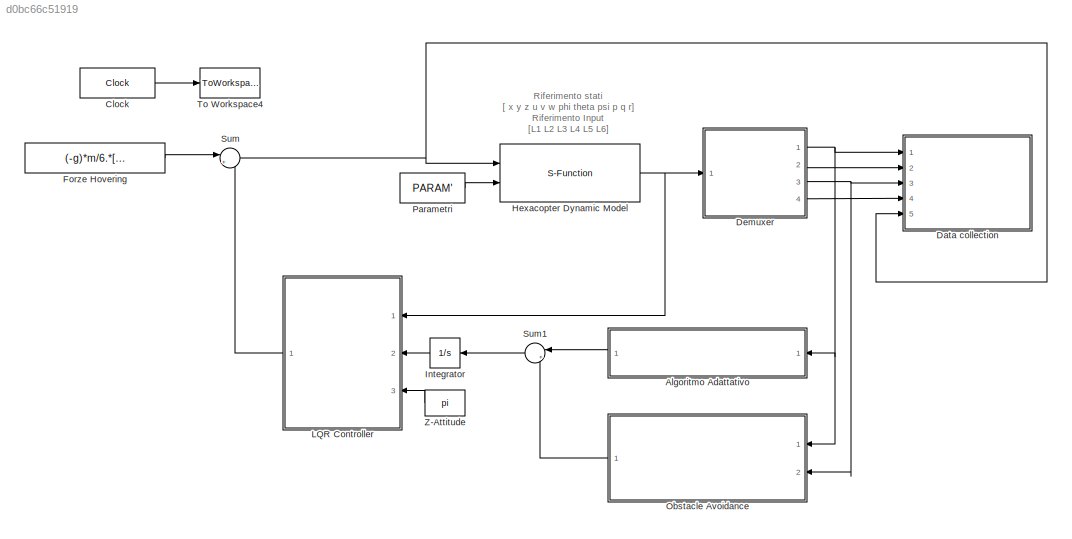
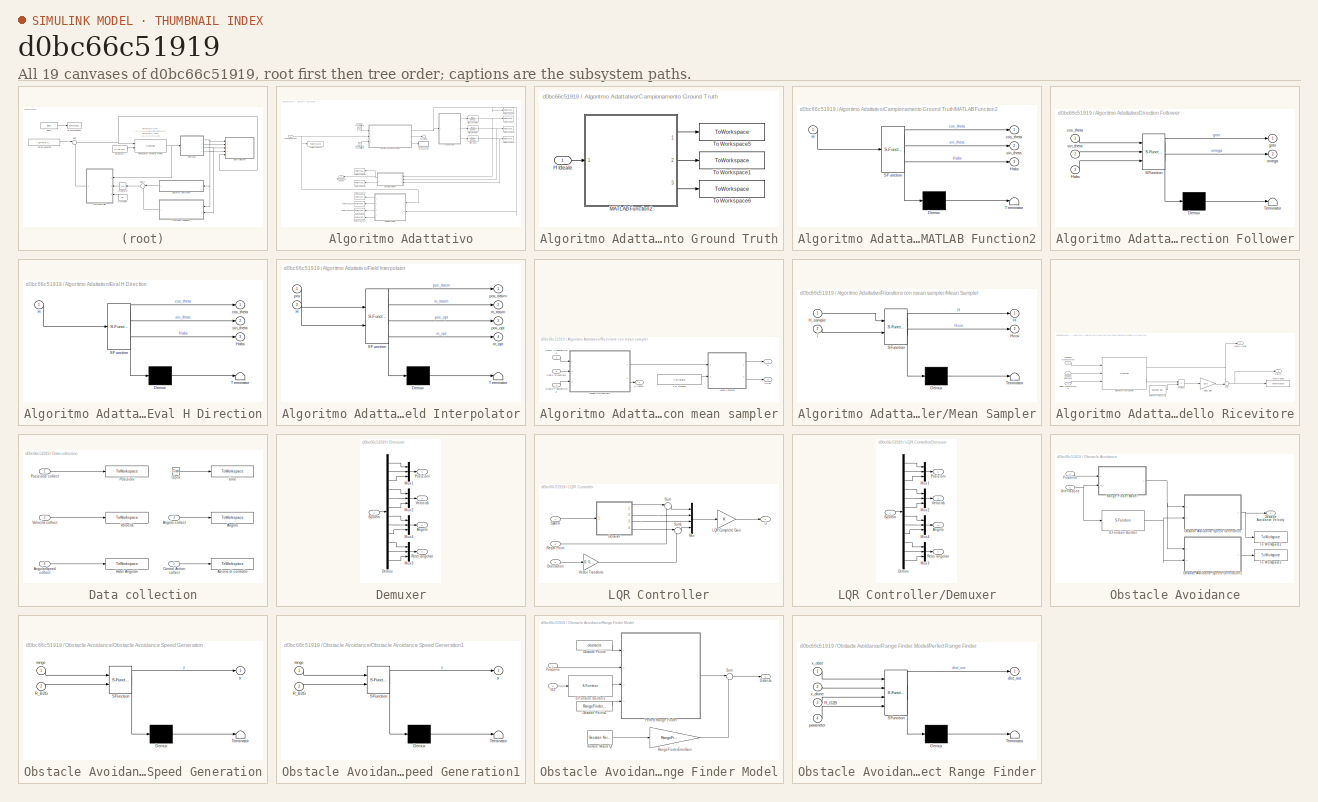
[diagram: thumbnail index - all 19 canvases of the model, root first then tree order]
MODEL slx_d0bc66c51919
KIND model
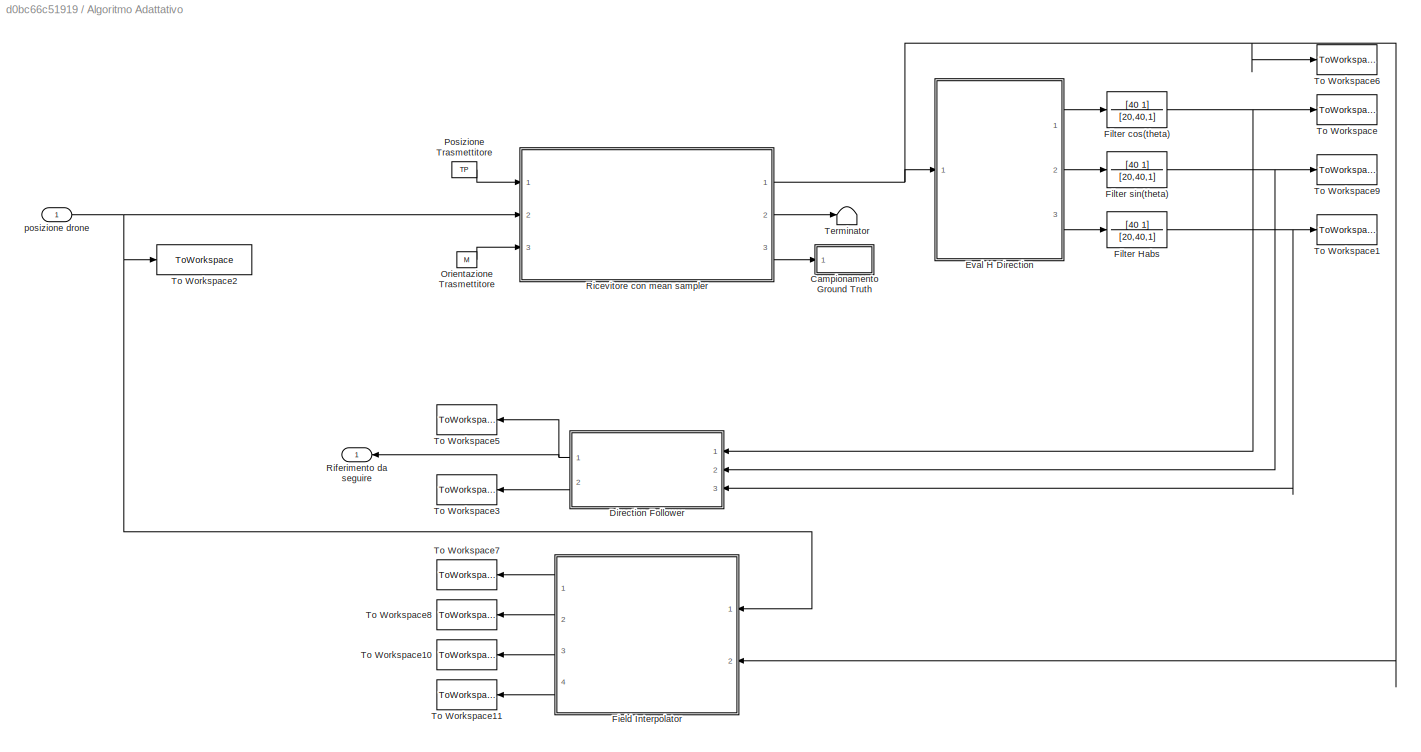
BLOCK [SubSystem] Algoritmo Adattativo
  Ports = [1, 1]
  RequestExecContextInheritance = off
BLOCK [SubSystem] Algoritmo Adattativo/Campionamento Ground Truth
  Ports = [1]
  RequestExecContextInheritance = off
BLOCK [Inport] Algoritmo Adattativo/Campionamento Ground Truth/H Ideale
  IconDisplay = Port number
BLOCK [SubSystem] Algoritmo Adattativo/Campionamento Ground Truth/MATLAB Function2
  ErrorFcn = Stateflow.Translate.translate
  PermitHierarchicalResolution = ExplicitOnly
  Ports = [1, 3]
  RequestExecContextInheritance = off
  SFBlockType = MATLAB Function
  TreatAsAtomicUnit = on
BLOCK [Demux] Algoritmo Adattativo/Campionamento Ground Truth/MATLAB Function2/ Demux 
  Outputs = 1
  Ports = [1, 1]
BLOCK [S-Function] Algoritmo Adattativo/Campionamento Ground Truth/MATLAB Function2/ SFunction 
  EnableBusSupport = on
  FunctionName = sf_sfun
  PortCounts = [1 4]
  Ports = [1, 4]
  Tag = Stateflow S-Function hexacopter 5
BLOCK [Terminator] Algoritmo Adattativo/Campionamento Ground Truth/MATLAB Function2/ Terminator 
BLOCK [Inport] Algoritmo Adattativo/Campionamento Ground Truth/MATLAB Function2/H
  IconDisplay = Port number
BLOCK [Outport] Algoritmo Adattativo/Campionamento Ground Truth/MATLAB Function2/Habs
  IconDisplay = Port number
  Port = 3
BLOCK [Outport] Algoritmo Adattativo/Campionamento Ground Truth/MATLAB Function2/cos_theta
  IconDisplay = Port number
BLOCK [Outport] Algoritmo Adattativo/Campionamento Ground Truth/MATLAB Function2/sin_theta
  IconDisplay = Port number
  Port = 2
BLOCK [ToWorkspace] Algoritmo Adattativo/Campionamento Ground Truth/To Workspace1
  MaxDataPoints = inf
  Ports = [1]
  SampleTime = -1
  VariableName = sin_theta_real
BLOCK [ToWorkspace] Algoritmo Adattativo/Campionamento Ground Truth/To Workspace5
  MaxDataPoints = inf
  Ports = [1]
  SampleTime = -1
  VariableName = cos_theta_real
BLOCK [ToWorkspace] Algoritmo Adattativo/Campionamento Ground Truth/To Workspace6
  MaxDataPoints = inf
  Ports = [1]
  SampleTime = -1
  VariableName = Habs_real
BLOCK [SubSystem] Algoritmo Adattativo/Direction Follower
  ErrorFcn = Stateflow.Translate.translate
  PermitHierarchicalResolution = ExplicitOnly
  Ports = [3, 2]
  RequestExecContextInheritance = off
  SFBlockType = MATLAB Function
  TreatAsAtomicUnit = on
BLOCK [Demux] Algoritmo Adattativo/Direction Follower/ Demux 
  Outputs = 1
  Ports = [1, 1]
BLOCK [S-Function] Algoritmo Adattativo/Direction Follower/ SFunction 
  EnableBusSupport = on
  FunctionName = sf_sfun
  PortCounts = [3 3]
  Ports = [3, 3]
  Tag = Stateflow S-Function hexacopter 4
BLOCK [Terminator] Algoritmo Adattativo/Direction Follower/ Terminator 
BLOCK [Inport] Algoritmo Adattativo/Direction Follower/Habs
  IconDisplay = Port number
  Port = 3
BLOCK [Inport] Algoritmo Adattativo/Direction Follower/cos_theta
  IconDisplay = Port number
BLOCK [Outport] Algoritmo Adattativo/Direction Follower/goto
  IconDisplay = Port number
BLOCK [Outport] Algoritmo Adattativo/Direction Follower/omega
  IconDisplay = Port number
  Port = 2
BLOCK [Inport] Algoritmo Adattativo/Direction Follower/sin_theta
  IconDisplay = Port number
  Port = 2
BLOCK [SubSystem] Algoritmo Adattativo/Eval H Direction
  ErrorFcn = Stateflow.Translate.translate
  PermitHierarchicalResolution = ExplicitOnly
  Ports = [1, 3]
  RequestExecContextInheritance = off
  SFBlockType = MATLAB Function
  TreatAsAtomicUnit = on
BLOCK [Demux] Algoritmo Adattativo/Eval H Direction/ Demux 
  Outputs = 1
  Ports = [1, 1]
BLOCK [S-Function] Algoritmo Adattativo/Eval H Direction/ SFunction 
  EnableBusSupport = on
  FunctionName = sf_sfun
  PortCounts = [1 4]
  Ports = [1, 4]
  SFunctionModules = sf_sfun_wrapper
  Tag = Stateflow S-Function hexacopter 2
BLOCK [Terminator] Algoritmo Adattativo/Eval H Direction/ Terminator 
BLOCK [Inport] Algoritmo Adattativo/Eval H Direction/H
  IconDisplay = Port number
BLOCK [Outport] Algoritmo Adattativo/Eval H Direction/Habs
  IconDisplay = Port number
  Port = 3
BLOCK [Outport] Algoritmo Adattativo/Eval H Direction/cos_theta
  IconDisplay = Port number
BLOCK [Outport] Algoritmo Adattativo/Eval H Direction/sin_theta
  IconDisplay = Port number
  Port = 2
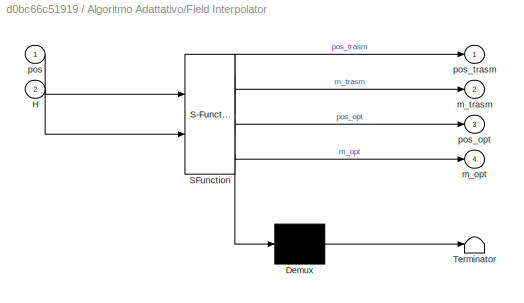
BLOCK [SubSystem] Algoritmo Adattativo/Field Interpolator
  ErrorFcn = Stateflow.Translate.translate
  PermitHierarchicalResolution = ExplicitOnly
  Ports = [2, 4]
  RequestExecContextInheritance = off
  SFBlockType = MATLAB Function
  TreatAsAtomicUnit = on
BLOCK [Demux] Algoritmo Adattativo/Field Interpolator/ Demux 
  Outputs = 1
  Ports = [1, 1]
BLOCK [S-Function] Algoritmo Adattativo/Field Interpolator/ SFunction 
  EnableBusSupport = on
  FunctionName = sf_sfun
  PortCounts = [2 5]
  Ports = [2, 5]
  SFunctionModules = sf_sfun_wrapper
  Tag = Stateflow S-Function hexacopter 6
BLOCK [Terminator] Algoritmo Adattativo/Field Interpolator/ Terminator 
BLOCK [Inport] Algoritmo Adattativo/Field Interpolator/H
  IconDisplay = Port number
  Port = 2
BLOCK [Outport] Algoritmo Adattativo/Field Interpolator/m_opt
  IconDisplay = Port number
  Port = 4
BLOCK [Outport] Algoritmo Adattativo/Field Interpolator/m_trasm
  IconDisplay = Port number
  Port = 2
BLOCK [Inport] Algoritmo Adattativo/Field Interpolator/pos
  IconDisplay = Port number
BLOCK [Outport] Algoritmo Adattativo/Field Interpolator/pos_opt
  IconDisplay = Port number
  Port = 3
BLOCK [Outport] Algoritmo Adattativo/Field Interpolator/pos_trasm
  IconDisplay = Port number
BLOCK [TransferFcn] Algoritmo Adattativo/Filter Habs
  Denominator = [20,40,1]
  Numerator = [40 1]
BLOCK [TransferFcn] Algoritmo Adattativo/Filter cos(theta)
  Denominator = [20,40,1]
  Numerator = [40 1]
BLOCK [TransferFcn] Algoritmo Adattativo/Filter sin(theta)
  Denominator = [20,40,1]
  Numerator = [40 1]
BLOCK [Constant] Algoritmo Adattativo/Orientazione Trasmettitore
  Value = M
BLOCK [Constant] Algoritmo Adattativo/Posizione Trasmettitore
  Value = TP
BLOCK [SubSystem] Algoritmo Adattativo/Ricevitore con mean sampler
  Ports = [3, 3]
  RequestExecContextInheritance = off
  TreatAsAtomicUnit = on
BLOCK [Inport] Algoritmo Adattativo/Ricevitore con mean sampler/Dipolo Trasmettitore
  IconDisplay = Port number
  Port = 3
BLOCK [ForIterator] Algoritmo Adattativo/Ricevitore con mean sampler/For Iterator
  IterationLimit = 50
  Ports = [0, 1]
BLOCK [Outport] Algoritmo Adattativo/Ricevitore con mean sampler/H
  IconDisplay = Port number
BLOCK [Outport] Algoritmo Adattativo/Ricevitore con mean sampler/H ideale
  IconDisplay = Port number
  Port = 3
BLOCK [Outport] Algoritmo Adattativo/Ricevitore con mean sampler/HCov
  IconDisplay = Port number
  Port = 2
BLOCK [SubSystem] Algoritmo Adattativo/Ricevitore con mean sampler/Mean Sampler
  ErrorFcn = Stateflow.Translate.translate
  PermitHierarchicalResolution = ExplicitOnly
  Ports = [2, 2]
  RequestExecContextInheritance = off
  SFBlockType = MATLAB Function
  TreatAsAtomicUnit = on
BLOCK [Demux] Algoritmo Adattativo/Ricevitore con mean sampler/Mean Sampler/ Demux 
  Outputs = 1
  Ports = [1, 1]
BLOCK [S-Function] Algoritmo Adattativo/Ricevitore con mean sampler/Mean Sampler/ SFunction 
  EnableBusSupport = on
  FunctionName = sf_sfun
  PortCounts = [2 3]
  Ports = [2, 3]
  Tag = Stateflow S-Function hexacopter 7
BLOCK [Terminator] Algoritmo Adattativo/Ricevitore con mean sampler/Mean Sampler/ Terminator 
BLOCK [Outport] Algoritmo Adattativo/Ricevitore con mean sampler/Mean Sampler/H
  IconDisplay = Port number
BLOCK [Inport] Algoritmo Adattativo/Ricevitore con mean sampler/Mean Sampler/H_sample
  IconDisplay = Port number
BLOCK [Outport] Algoritmo Adattativo/Ricevitore con mean sampler/Mean Sampler/Hcov
  IconDisplay = Port number
  Port = 2
BLOCK [Inport] Algoritmo Adattativo/Ricevitore con mean sampler/Mean Sampler/i
  IconDisplay = Port number
  Port = 2
BLOCK [SubSystem] Algoritmo Adattativo/Ricevitore con mean sampler/Modello Ricevitore
  Ports = [3, 2]
  RequestExecContextInheritance = off
BLOCK [Inport] Algoritmo Adattativo/Ricevitore con mean sampler/Modello Ricevitore/Dipolo Trasmettitore
  IconDisplay = Port number
  Port = 3
BLOCK [Outport] Algoritmo Adattativo/Ricevitore con mean sampler/Modello Ricevitore/Misura
  IconDisplay = Port number
BLOCK [ToWorkspace] Algoritmo Adattativo/Ricevitore con mean sampler/Modello Ricevitore/Misura Hfield
  MaxDataPoints = inf
  Ports = [1]
  SampleTime = -1
  VariableName = Receiver_HField
BLOCK [Outport] Algoritmo Adattativo/Ricevitore con mean sampler/Modello Ricevitore/Misura Ideale
  IconDisplay = Port number
  Port = 2
BLOCK [Gain] Algoritmo Adattativo/Ricevitore con mean sampler/Modello Ricevitore/Noise Gain
  Gain = 1e-2
  OutDataTypeStr = Inherit: Inherit via internal rule
  ParamDataTypeStr = Inherit: Inherit via internal rule
  SaturateOnIntegerOverflow = off
BLOCK [Inport] Algoritmo Adattativo/Ricevitore con mean sampler/Modello Ricevitore/Posizione Ricevitore
  IconDisplay = Port number
  Port = 2
BLOCK [Inport] Algoritmo Adattativo/Ricevitore con mean sampler/Modello Ricevitore/Posizione Trasmettitore
  IconDisplay = Port number
BLOCK [Product] Algoritmo Adattativo/Ricevitore con mean sampler/Modello Ricevitore/Product
  InputSameDT = off
  OutDataTypeStr = Inherit: Inherit via internal rule
  Ports = [2, 1]
  RndMeth = Floor
  SaturateOnIntegerOverflow = off
BLOCK [S-Function] Algoritmo Adattativo/Ricevitore con mean sampler/Modello Ricevitore/Ricevitore del segnale
  CopyFcn = set_param(gcbh,'LinkStatus','none')
  EnableBusSupport = off
  FunctionName = H_receiver_mdl
  InitFcn = try, set_param(gcb,'FunctionName','H_receiver_mdl'), end
  OpenFcn = sfunctionwizard(gcbh)
  Ports = [3, 2]
  PreSaveFcn = try, set_param(gcb,'FunctionName','H_receiver_mdl'), end
  SFunctionModules = H_receiver_mdl_wrapper
BLOCK [Reference] Algoritmo Adattativo/Ricevitore con mean sampler/Modello Ricevitore/Rumore Misura Qt  REF=commnoisgen2/Gaussian Noise
Generator
  Ports = [0, 1]
  SourceBlock = commnoisgen2/Gaussian Noise\nGenerator
  SourceType = Gaussian Noise Generator
  Ts = -1
  d = Qt
  frameBased = off
  m = vt
  orient = off
  outDataType = double
  s = 41
  sampPerFrame = 1
BLOCK [Sum] Algoritmo Adattativo/Ricevitore con mean sampler/Modello Ricevitore/Sum
  IconShape = round
  InputSameDT = off
  Inputs = ++|
  OutDataTypeStr = Inherit: Inherit via internal rule
  Ports = [2, 1]
  SaturateOnIntegerOverflow = off
BLOCK [Inport] Algoritmo Adattativo/Ricevitore con mean sampler/Posiz. Ricevitore
  IconDisplay = Port number
  Port = 2
BLOCK [Inport] Algoritmo Adattativo/Ricevitore con mean sampler/Posiz. Trasmettitore
  IconDisplay = Port number
BLOCK [Outport] Algoritmo Adattativo/Riferimento da seguire
  IconDisplay = Port number
BLOCK [Terminator] Algoritmo Adattativo/Terminator
BLOCK [ToWorkspace] Algoritmo Adattativo/To Workspace
  MaxDataPoints = inf
  Ports = [1]
  SampleTime = -1
  VariableName = cos_theta
BLOCK [ToWorkspace] Algoritmo Adattativo/To Workspace1
  MaxDataPoints = inf
  Ports = [1]
  SampleTime = -1
  VariableName = Habs
BLOCK [ToWorkspace] Algoritmo Adattativo/To Workspace10
  MaxDataPoints = inf
  Ports = [1]
  SampleTime = -1
  VariableName = pos_opt_rt
BLOCK [ToWorkspace] Algoritmo Adattativo/To Workspace11
  MaxDataPoints = inf
  Ports = [1]
  SampleTime = -1
  VariableName = m_opt_rt
BLOCK [ToWorkspace] Algoritmo Adattativo/To Workspace2
  MaxDataPoints = inf
  Ports = [1]
  SampleTime = -1
  VariableName = Posizione
BLOCK [ToWorkspace] Algoritmo Adattativo/To Workspace3
  MaxDataPoints = inf
  Ports = [1]
  SampleTime = -1
  VariableName = omega
BLOCK [ToWorkspace] Algoritmo Adattativo/To Workspace5
  MaxDataPoints = inf
  Ports = [1]
  SampleTime = -1
  VariableName = speed
BLOCK [ToWorkspace] Algoritmo Adattativo/To Workspace6
  MaxDataPoints = inf
  Ports = [1]
  SampleTime = -1
  VariableName = Hreceived
BLOCK [ToWorkspace] Algoritmo Adattativo/To Workspace7
  MaxDataPoints = inf
  Ports = [1]
  SampleTime = -1
  VariableName = pos_opt
BLOCK [ToWorkspace] Algoritmo Adattativo/To Workspace8
  MaxDataPoints = inf
  Ports = [1]
  SampleTime = -1
  VariableName = m_opt
BLOCK [ToWorkspace] Algoritmo Adattativo/To Workspace9
  MaxDataPoints = inf
  Ports = [1]
  SampleTime = -1
  VariableName = sin_theta
BLOCK [Inport] Algoritmo Adattativo/posizione drone
  IconDisplay = Port number
BLOCK [Clock] Clock
  DisplayTime = on
BLOCK [SubSystem] Data collection
  Ports = [5]
  RequestExecContextInheritance = off
BLOCK [ToWorkspace] Data collection/Angolo
  MaxDataPoints = inf
  Ports = [1]
  SampleTime = -1
  VariableName = sim_attitude
BLOCK [Inport] Data collection/Angolo collect
  IconDisplay = Port number
  Port = 3
BLOCK [Inport] Data collection/AngularSpeed collect
  IconDisplay = Port number
  Port = 4
BLOCK [ToWorkspace] Data collection/Azione di controllo
  MaxDataPoints = inf
  Ports = [1]
  SampleTime = -1
  VariableName = sim_control
BLOCK [Clock] Data collection/Clock
BLOCK [Inport] Data collection/Control Action collect
  IconDisplay = Port number
  Port = 5
BLOCK [Inport] Data collection/Posizione collect
  IconDisplay = Port number
BLOCK [ToWorkspace] Data collection/Posizioni 
  MaxDataPoints = inf
  Ports = [1]
  SampleTime = -1
  VariableName = sim_position
BLOCK [ToWorkspace] Data collection/Ratei Angolari
  MaxDataPoints = inf
  Ports = [1]
  SampleTime = -1
  VariableName = sim_angularspeed
BLOCK [Inport] Data collection/Velocita collect
  IconDisplay = Port number
  Port = 2
BLOCK [ToWorkspace] Data collection/Velocità
  MaxDataPoints = inf
  Ports = [1]
  SampleTime = -1
  VariableName = sim_speed
BLOCK [ToWorkspace] Data collection/time
  MaxDataPoints = inf
  Ports = [1]
  SampleTime = -1
  VariableName = sim_time
BLOCK [SubSystem] Demuxer
  Ports = [1, 4]
  RequestExecContextInheritance = off
BLOCK [Outport] Demuxer/Angolo
  IconDisplay = Port number
  Port = 3
BLOCK [Demux] Demuxer/Demux
  DisplayOption = bar
  Outputs = 12
  Ports = [1, 12]
BLOCK [Mux] Demuxer/Mux1
  DisplayOption = bar
  Inputs = 3
  Ports = [3, 1]
BLOCK [Mux] Demuxer/Mux2
  DisplayOption = bar
  Inputs = 3
  Ports = [3, 1]
BLOCK [Mux] Demuxer/Mux3
  DisplayOption = bar
  Inputs = 3
  Ports = [3, 1]
BLOCK [Mux] Demuxer/Mux4
  DisplayOption = bar
  Inputs = 3
  Ports = [3, 1]
BLOCK [Outport] Demuxer/Posizioni
  IconDisplay = Port number
BLOCK [Outport] Demuxer/Retei angolari
  IconDisplay = Port number
  Port = 4
BLOCK [Inport] Demuxer/System
  IconDisplay = Port number
BLOCK [Outport] Demuxer/Velocità
  IconDisplay = Port number
  Port = 2
BLOCK [Constant] Forze Hovering
  Value = (-g)*m/6.*[1,1,1,1,1,1]'
BLOCK [S-Function] Hexacopter Dynamic Model
  CopyFcn = set_param(gcbh,'LinkStatus','none')
  EnableBusSupport = off
  FunctionName = hexacopter_s
  InitFcn = try, set_param(gcb,'FunctionName','hexacopter_s'), end
  OpenFcn = sfunctionwizard(gcbh)
  Ports = [2, 1]
  PreSaveFcn = try, set_param(gcb,'FunctionName','hexacopter_s'), end
  SFunctionModules = hexacopter_s_wrapper
BLOCK [Integrator] Integrator
  InitialCondition = RP'
  Ports = [1, 1]
BLOCK [SubSystem] LQR Controller
  Ports = [3, 1]
  RequestExecContextInheritance = off
BLOCK [SubSystem] LQR Controller/Demuxer
  Ports = [1, 4]
  RequestExecContextInheritance = off
BLOCK [Outport] LQR Controller/Demuxer/Angolo
  IconDisplay = Port number
  Port = 3
BLOCK [Demux] LQR Controller/Demuxer/Demux
  DisplayOption = bar
  Outputs = 12
  Ports = [1, 12]
BLOCK [Mux] LQR Controller/Demuxer/Mux1
  DisplayOption = bar
  Inputs = 3
  Ports = [3, 1]
BLOCK [Mux] LQR Controller/Demuxer/Mux2
  DisplayOption = bar
  Inputs = 3
  Ports = [3, 1]
BLOCK [Mux] LQR Controller/Demuxer/Mux3
  DisplayOption = bar
  Inputs = 3
  Ports = [3, 1]
BLOCK [Mux] LQR Controller/Demuxer/Mux4
  DisplayOption = bar
  Inputs = 3
  Ports = [3, 1]
BLOCK [Outport] LQR Controller/Demuxer/Posizioni
  IconDisplay = Port number
BLOCK [Outport] LQR Controller/Demuxer/Retei angolari
  IconDisplay = Port number
  Port = 4
BLOCK [Inport] LQR Controller/Demuxer/System
  IconDisplay = Port number
BLOCK [Outport] LQR Controller/Demuxer/Velocità
  IconDisplay = Port number
  Port = 2
BLOCK [Gain] LQR Controller/LQR Complete Gain
  Gain = K
  Multiplication = Matrix(K*u)
  OutDataTypeStr = Inherit: Inherit via internal rule
  ParamDataTypeStr = Inherit: Inherit via internal rule
  SaturateOnIntegerOverflow = off
BLOCK [Mux] LQR Controller/Mux
  DisplayOption = bar
  Ports = [4, 1]
BLOCK [Inport] LQR Controller/Orientation
  IconDisplay = Port number
  Port = 3
BLOCK [Inport] LQR Controller/Reach Point
  IconDisplay = Port number
  Port = 2
BLOCK [Sum] LQR Controller/Sum
  IconShape = round
  InputSameDT = off
  Inputs = |+-
  OutDataTypeStr = Inherit: Inherit via internal rule
  Ports = [2, 1]
  SaturateOnIntegerOverflow = off
BLOCK [Sum] LQR Controller/Sum1
  IconShape = round
  InputSameDT = off
  Inputs = |+-
  OutDataTypeStr = Inherit: Inherit via internal rule
  Ports = [2, 1]
  SaturateOnIntegerOverflow = off
BLOCK [Inport] LQR Controller/System
  IconDisplay = Port number
BLOCK [Outport] LQR Controller/U
  IconDisplay = Port number
BLOCK [Gain] LQR Controller/Vector Transform
  Gain = [0, 0, 1]'
  Multiplication = Matrix(K*u)
  OutDataTypeStr = Inherit: Inherit via internal rule
  ParamDataTypeStr = Inherit: Inherit via internal rule
  SaturateOnIntegerOverflow = off
BLOCK [SubSystem] Obstacle Avoidance
  Ports = [2, 1]
  RequestExecContextInheritance = off
BLOCK [SubSystem] Obstacle Avoidance/Obstacle Avoidance Speed Generation
  ErrorFcn = Stateflow.Translate.translate
  PermitHierarchicalResolution = ExplicitOnly
  Ports = [2, 1]
  RequestExecContextInheritance = off
  SFBlockType = MATLAB Function
  TreatAsAtomicUnit = on
BLOCK [Demux] Obstacle Avoidance/Obstacle Avoidance Speed Generation/ Demux 
  Outputs = 1
  Ports = [1, 1]
BLOCK [S-Function] Obstacle Avoidance/Obstacle Avoidance Speed Generation/ SFunction 
  EnableBusSupport = on
  FunctionName = sf_sfun
  PortCounts = [2 2]
  Ports = [2, 2]
  Tag = Stateflow S-Function hexacopter 9
BLOCK [Terminator] Obstacle Avoidance/Obstacle Avoidance Speed Generation/ Terminator 
BLOCK [Inport] Obstacle Avoidance/Obstacle Avoidance Speed Generation/R_B2G
  IconDisplay = Port number
  Port = 2
BLOCK [Inport] Obstacle Avoidance/Obstacle Avoidance Speed Generation/range
  IconDisplay = Port number
BLOCK [Outport] Obstacle Avoidance/Obstacle Avoidance Speed Generation/y
  IconDisplay = Port number
BLOCK [SubSystem] Obstacle Avoidance/Obstacle Avoidance Speed Generation1
  ErrorFcn = Stateflow.Translate.translate
  PermitHierarchicalResolution = ExplicitOnly
  Ports = [2, 1]
  RequestExecContextInheritance = off
  SFBlockType = MATLAB Function
  TreatAsAtomicUnit = on
BLOCK [Demux] Obstacle Avoidance/Obstacle Avoidance Speed Generation1/ Demux 
  Outputs = 1
  Ports = [1, 1]
BLOCK [S-Function] Obstacle Avoidance/Obstacle Avoidance Speed Generation1/ SFunction 
  EnableBusSupport = on
  FunctionName = sf_sfun
  PortCounts = [2 2]
  Ports = [2, 2]
  Tag = Stateflow S-Function hexacopter 1
BLOCK [Terminator] Obstacle Avoidance/Obstacle Avoidance Speed Generation1/ Terminator 
BLOCK [Inport] Obstacle Avoidance/Obstacle Avoidance Speed Generation1/R_B2G
  IconDisplay = Port number
  Port = 2
BLOCK [Inport] Obstacle Avoidance/Obstacle Avoidance Speed Generation1/range
  IconDisplay = Port number
BLOCK [Outport] Obstacle Avoidance/Obstacle Avoidance Speed Generation1/y
  IconDisplay = Port number
BLOCK [Outport] Obstacle Avoidance/Obstacle Avoidance Velocity
  IconDisplay = Port number
BLOCK [Inport] Obstacle Avoidance/Orientazione
  IconDisplay = Port number
  Port = 2
BLOCK [Inport] Obstacle Avoidance/Posizione
  IconDisplay = Port number
BLOCK [SubSystem] Obstacle Avoidance/Range Finder Model
  Ports = [2, 1]
  RequestExecContextInheritance = off
BLOCK [Outport] Obstacle Avoidance/Range Finder Model/Distanza
  IconDisplay = Port number
BLOCK [Inport] Obstacle Avoidance/Range Finder Model/In2
  IconDisplay = Port number
  Port = 2
BLOCK [Constant] Obstacle Avoidance/Range Finder Model/Obstacle Points
  Value = obstacle
BLOCK [Constant] Obstacle Avoidance/Range Finder Model/Obstacle Points1
  Value = RangeFinderParam
BLOCK [SubSystem] Obstacle Avoidance/Range Finder Model/Perfect Range Finder
  ErrorFcn = Stateflow.Translate.translate
  PermitHierarchicalResolution = ExplicitOnly
  Ports = [4, 1]
  RequestExecContextInheritance = off
  SFBlockType = MATLAB Function
  TreatAsAtomicUnit = on
BLOCK [Demux] Obstacle Avoidance/Range Finder Model/Perfect Range Finder/ Demux 
  Outputs = 1
  Ports = [1, 1]
BLOCK [S-Function] Obstacle Avoidance/Range Finder Model/Perfect Range Finder/ SFunction 
  EnableBusSupport = on
  FunctionName = sf_sfun
  PortCounts = [4 2]
  Ports = [4, 2]
  Tag = Stateflow S-Function hexacopter 8
BLOCK [Terminator] Obstacle Avoidance/Range Finder Model/Perfect Range Finder/ Terminator 
BLOCK [Inport] Obstacle Avoidance/Range Finder Model/Perfect Range Finder/R_G2B
  IconDisplay = Port number
  Port = 3
BLOCK [Outport] Obstacle Avoidance/Range Finder Model/Perfect Range Finder/dist_out
  IconDisplay = Port number
BLOCK [Inport] Obstacle Avoidance/Range Finder Model/Perfect Range Finder/parameter
  IconDisplay = Port number
  Port = 4
BLOCK [Inport] Obstacle Avoidance/Range Finder Model/Perfect Range Finder/x_drone
  IconDisplay = Port number
  Port = 2
BLOCK [Inport] Obstacle Avoidance/Range Finder Model/Perfect Range Finder/x_obst
  IconDisplay = Port number
BLOCK [Inport] Obstacle Avoidance/Range Finder Model/Posizione
  IconDisplay = Port number
BLOCK [Gain] Obstacle Avoidance/Range Finder Model/RangeFinderErrorGain
  Gain = RangeFinderErrorGain
  OutDataTypeStr = Inherit: Inherit via internal rule
  ParamDataTypeStr = Inherit: Inherit via internal rule
  SaturateOnIntegerOverflow = off
BLOCK [Reference] Obstacle Avoidance/Range Finder Model/Rumore Misura Qt  REF=commnoisgen2/Gaussian Noise
Generator
  Ports = [0, 1]
  SourceBlock = commnoisgen2/Gaussian Noise\nGenerator
  SourceType = Gaussian Noise Generator
  Ts = 0.1
  d = eye(6,6)
  frameBased = off
  m = zeros(6,1)
  orient = off
  outDataType = double
  s = 56
  sampPerFrame = 1
BLOCK [S-Function] Obstacle Avoidance/Range Finder Model/S-Function Builder1
  CopyFcn = set_param(gcbh,'LinkStatus','none')
  EnableBusSupport = off
  FunctionName = Rot_G2B
  InitFcn = try, set_param(gcb,'FunctionName','Rot_G2B'), end
  OpenFcn = sfunctionwizard(gcbh)
  Ports = [1, 1]
  PreSaveFcn = try, set_param(gcb,'FunctionName','Rot_G2B'), end
  SFunctionModules = Rot_G2B_wrapper
BLOCK [Sum] Obstacle Avoidance/Range Finder Model/Sum
  IconShape = round
  InputSameDT = off
  Inputs = |++
  OutDataTypeStr = Inherit: Inherit via internal rule
  Ports = [2, 1]
  SaturateOnIntegerOverflow = off
BLOCK [S-Function] Obstacle Avoidance/S-Function Builder
  CopyFcn = set_param(gcbh,'LinkStatus','none')
  EnableBusSupport = off
  FunctionName = Rot_B2G
  InitFcn = try, set_param(gcb,'FunctionName','Rot_G2B'), end
  OpenFcn = sfunctionwizard(gcbh)
  Ports = [1, 1]
  PreSaveFcn = try, set_param(gcb,'FunctionName','Rot_B2G'), end
  SFunctionModules = Rot_B2G_wrapper
BLOCK [ToWorkspace] Obstacle Avoidance/To Workspace1
  MaxDataPoints = inf
  Ports = [1]
  SampleTime = -1
  VariableName = RangeReadings
BLOCK [ToWorkspace] Obstacle Avoidance/To Workspace2
  MaxDataPoints = inf
  Ports = [1]
  SampleTime = -1
  VariableName = RangeFiltered
BLOCK [Constant] Parametri
  Value = PARAM'
BLOCK [Sum] Sum
  IconShape = round
  InputSameDT = off
  Inputs = |+-
  OutDataTypeStr = Inherit: Inherit via internal rule
  Ports = [2, 1]
  SaturateOnIntegerOverflow = off
BLOCK [Sum] Sum1
  IconShape = round
  InputSameDT = off
  Inputs = |++
  OutDataTypeStr = Inherit: Inherit via internal rule
  Ports = [2, 1]
  SaturateOnIntegerOverflow = off
BLOCK [ToWorkspace] To Workspace4
  MaxDataPoints = inf
  Ports = [1]
  SampleTime = -1
  VariableName = time
BLOCK [Constant] Z-Attitude
  Value = pi
ANNOTATION (root): Riferimento stati [ x y z u v w phi theta psi p q r] Riferimento Input [L1 L2 L3 L4 L5 L6]
LINE Algoritmo Adattativo/Campionamento Ground Truth/H Ideale:1 -> Algoritmo Adattativo/Campionamento Ground Truth/MATLAB Function2:1
LINE Algoritmo Adattativo/Campionamento Ground Truth/MATLAB Function2:1 -> Algoritmo Adattativo/Campionamento Ground Truth/To Workspace5:1
LINE Algoritmo Adattativo/Campionamento Ground Truth/MATLAB Function2:2 -> Algoritmo Adattativo/Campionamento Ground Truth/To Workspace1:1
LINE Algoritmo Adattativo/Campionamento Ground Truth/MATLAB Function2:3 -> Algoritmo Adattativo/Campionamento Ground Truth/To Workspace6:1
NET Algoritmo Adattativo/Direction Follower:1 -> Algoritmo Adattativo/Riferimento da seguire:1, Algoritmo Adattativo/To Workspace5:1
LINE Algoritmo Adattativo/Direction Follower:2 -> Algoritmo Adattativo/To Workspace3:1
LINE Algoritmo Adattativo/Eval H Direction:1 -> Algoritmo Adattativo/Filter cos(theta):1
LINE Algoritmo Adattativo/Eval H Direction:2 -> Algoritmo Adattativo/Filter sin(theta):1
LINE Algoritmo Adattativo/Eval H Direction:3 -> Algoritmo Adattativo/Filter Habs:1
LINE Algoritmo Adattativo/Field Interpolator:1 -> Algoritmo Adattativo/To Workspace7:1
LINE Algoritmo Adattativo/Field Interpolator:2 -> Algoritmo Adattativo/To Workspace8:1
LINE Algoritmo Adattativo/Field Interpolator:3 -> Algoritmo Adattativo/To Workspace10:1
LINE Algoritmo Adattativo/Field Interpolator:4 -> Algoritmo Adattativo/To Workspace11:1
NET Algoritmo Adattativo/Filter Habs:1 -> Algoritmo Adattativo/Direction Follower:3, Algoritmo Adattativo/To Workspace1:1
NET Algoritmo Adattativo/Filter cos(theta):1 -> Algoritmo Adattativo/Direction Follower:1, Algoritmo Adattativo/To Workspace:1
NET Algoritmo Adattativo/Filter sin(theta):1 -> Algoritmo Adattativo/Direction Follower:2, Algoritmo Adattativo/To Workspace9:1
LINE Algoritmo Adattativo/Orientazione Trasmettitore:1 -> Algoritmo Adattativo/Ricevitore con mean sampler:3
LINE Algoritmo Adattativo/Posizione Trasmettitore:1 -> Algoritmo Adattativo/Ricevitore con mean sampler:1
LINE Algoritmo Adattativo/Ricevitore con mean sampler/Dipolo Trasmettitore:1 -> Algoritmo Adattativo/Ricevitore con mean sampler/Modello Ricevitore:3
LINE Algoritmo Adattativo/Ricevitore con mean sampler/For Iterator:1 -> Algoritmo Adattativo/Ricevitore con mean sampler/Mean Sampler:2
LINE Algoritmo Adattativo/Ricevitore con mean sampler/Mean Sampler:1 -> Algoritmo Adattativo/Ricevitore con mean sampler/H:1
LINE Algoritmo Adattativo/Ricevitore con mean sampler/Mean Sampler:2 -> Algoritmo Adattativo/Ricevitore con mean sampler/HCov:1
LINE Algoritmo Adattativo/Ricevitore con mean sampler/Modello Ricevitore/Dipolo Trasmettitore:1 -> Algoritmo Adattativo/Ricevitore con mean sampler/Modello Ricevitore/Ricevitore del segnale:3
LINE Algoritmo Adattativo/Ricevitore con mean sampler/Modello Ricevitore/Noise Gain:1 -> Algoritmo Adattativo/Ricevitore con mean sampler/Modello Ricevitore/Sum:2
LINE Algoritmo Adattativo/Ricevitore con mean sampler/Modello Ricevitore/Posizione Ricevitore:1 -> Algoritmo Adattativo/Ricevitore con mean sampler/Modello Ricevitore/Ricevitore del segnale:2
LINE Algoritmo Adattativo/Ricevitore con mean sampler/Modello Ricevitore/Posizione Trasmettitore:1 -> Algoritmo Adattativo/Ricevitore con mean sampler/Modello Ricevitore/Ricevitore del segnale:1
LINE Algoritmo Adattativo/Ricevitore con mean sampler/Modello Ricevitore/Product:1 -> Algoritmo Adattativo/Ricevitore con mean sampler/Modello Ricevitore/Noise Gain:1
NET Algoritmo Adattativo/Ricevitore con mean sampler/Modello Ricevitore/Ricevitore del segnale:1 -> Algoritmo Adattativo/Ricevitore con mean sampler/Modello Ricevitore/Misura Ideale:1, Algoritmo Adattativo/Ricevitore con mean sampler/Modello Ricevitore/Sum:1
LINE Algoritmo Adattativo/Ricevitore con mean sampler/Modello Ricevitore/Ricevitore del segnale:2 -> Algoritmo Adattativo/Ricevitore con mean sampler/Modello Ricevitore/Product:1
LINE Algoritmo Adattativo/Ricevitore con mean sampler/Modello Ricevitore/Rumore Misura Qt:1 -> Algoritmo Adattativo/Ricevitore con mean sampler/Modello Ricevitore/Product:2
NET Algoritmo Adattativo/Ricevitore con mean sampler/Modello Ricevitore/Sum:1 -> Algoritmo Adattativo/Ricevitore con mean sampler/Modello Ricevitore/Misura Hfield:1, Algoritmo Adattativo/Ricevitore con mean sampler/Modello Ricevitore/Misura:1
LINE Algoritmo Adattativo/Ricevitore con mean sampler/Modello Ricevitore:1 -> Algoritmo Adattativo/Ricevitore con mean sampler/Mean Sampler:1
LINE Algoritmo Adattativo/Ricevitore con mean sampler/Modello Ricevitore:2 -> Algoritmo Adattativo/Ricevitore con mean sampler/H ideale:1
LINE Algoritmo Adattativo/Ricevitore con mean sampler/Posiz. Ricevitore:1 -> Algoritmo Adattativo/Ricevitore con mean sampler/Modello Ricevitore:2
LINE Algoritmo Adattativo/Ricevitore con mean sampler/Posiz. Trasmettitore:1 -> Algoritmo Adattativo/Ricevitore con mean sampler/Modello Ricevitore:1
NET Algoritmo Adattativo/Ricevitore con mean sampler:1 -> Algoritmo Adattativo/Eval H Direction:1, Algoritmo Adattativo/Field Interpolator:2, Algoritmo Adattativo/To Workspace6:1
LINE Algoritmo Adattativo/Ricevitore con mean sampler:2 -> Algoritmo Adattativo/Terminator:1
LINE Algoritmo Adattativo/Ricevitore con mean sampler:3 -> Algoritmo Adattativo/Campionamento Ground Truth:1
NET Algoritmo Adattativo/posizione drone:1 -> Algoritmo Adattativo/Field Interpolator:1, Algoritmo Adattativo/Ricevitore con mean sampler:2, Algoritmo Adattativo/To Workspace2:1
LINE Algoritmo Adattativo:1 -> Sum1:1
LINE Clock:1 -> To Workspace4:1
LINE Data collection/Angolo collect:1 -> Data collection/Angolo:1
LINE Data collection/AngularSpeed collect:1 -> Data collection/Ratei Angolari:1
LINE Data collection/Clock:1 -> Data collection/time:1
LINE Data collection/Control Action collect:1 -> Data collection/Azione di controllo:1
LINE Data collection/Posizione collect:1 -> Data collection/Posizioni :1
LINE Data collection/Velocita collect:1 -> Data collection/Velocità:1
LINE Demuxer/Demux:1 -> Demuxer/Mux1:1
LINE Demuxer/Demux:10 -> Demuxer/Mux3:1
LINE Demuxer/Demux:11 -> Demuxer/Mux3:2
LINE Demuxer/Demux:12 -> Demuxer/Mux3:3
LINE Demuxer/Demux:2 -> Demuxer/Mux1:2
LINE Demuxer/Demux:3 -> Demuxer/Mux1:3
LINE Demuxer/Demux:4 -> Demuxer/Mux2:1
LINE Demuxer/Demux:5 -> Demuxer/Mux2:2
LINE Demuxer/Demux:6 -> Demuxer/Mux2:3
LINE Demuxer/Demux:7 -> Demuxer/Mux4:1
LINE Demuxer/Demux:8 -> Demuxer/Mux4:2
LINE Demuxer/Demux:9 -> Demuxer/Mux4:3
LINE Demuxer/Mux1:1 -> Demuxer/Posizioni:1
LINE Demuxer/Mux2:1 -> Demuxer/Velocità:1
LINE Demuxer/Mux3:1 -> Demuxer/Retei angolari:1
LINE Demuxer/Mux4:1 -> Demuxer/Angolo:1
LINE Demuxer/System:1 -> Demuxer/Demux:1
NET Demuxer:1 -> Algoritmo Adattativo:1, Data collection:1, Obstacle Avoidance:1
LINE Demuxer:2 -> Data collection:2
NET Demuxer:3 -> Data collection:3, Obstacle Avoidance:2
LINE Demuxer:4 -> Data collection:4
LINE Forze Hovering:1 -> Sum:1
NET Hexacopter Dynamic Model:1 -> Demuxer:1, LQR Controller:1
LINE Integrator:1 -> LQR Controller:2
LINE LQR Controller/Demuxer/Demux:1 -> LQR Controller/Demuxer/Mux1:1
LINE LQR Controller/Demuxer/Demux:10 -> LQR Controller/Demuxer/Mux3:1
LINE LQR Controller/Demuxer/Demux:11 -> LQR Controller/Demuxer/Mux3:2
LINE LQR Controller/Demuxer/Demux:12 -> LQR Controller/Demuxer/Mux3:3
LINE LQR Controller/Demuxer/Demux:2 -> LQR Controller/Demuxer/Mux1:2
LINE LQR Controller/Demuxer/Demux:3 -> LQR Controller/Demuxer/Mux1:3
LINE LQR Controller/Demuxer/Demux:4 -> LQR Controller/Demuxer/Mux2:1
LINE LQR Controller/Demuxer/Demux:5 -> LQR Controller/Demuxer/Mux2:2
LINE LQR Controller/Demuxer/Demux:6 -> LQR Controller/Demuxer/Mux2:3
LINE LQR Controller/Demuxer/Demux:7 -> LQR Controller/Demuxer/Mux4:1
LINE LQR Controller/Demuxer/Demux:8 -> LQR Controller/Demuxer/Mux4:2
LINE LQR Controller/Demuxer/Demux:9 -> LQR Controller/Demuxer/Mux4:3
LINE LQR Controller/Demuxer/Mux1:1 -> LQR Controller/Demuxer/Posizioni:1
LINE LQR Controller/Demuxer/Mux2:1 -> LQR Controller/Demuxer/Velocità:1
LINE LQR Controller/Demuxer/Mux3:1 -> LQR Controller/Demuxer/Retei angolari:1
LINE LQR Controller/Demuxer/Mux4:1 -> LQR Controller/Demuxer/Angolo:1
LINE LQR Controller/Demuxer/System:1 -> LQR Controller/Demuxer/Demux:1
LINE LQR Controller/Demuxer:1 -> LQR Controller/Sum:1
LINE LQR Controller/Demuxer:2 -> LQR Controller/Mux:2
LINE LQR Controller/Demuxer:3 -> LQR Controller/Mux:3
LINE LQR Controller/Demuxer:4 -> LQR Controller/Sum1:1
LINE LQR Controller/LQR Complete Gain:1 -> LQR Controller/U:1
LINE LQR Controller/Mux:1 -> LQR Controller/LQR Complete Gain:1
LINE LQR Controller/Orientation:1 -> LQR Controller/Vector Transform:1
LINE LQR Controller/Reach Point:1 -> LQR Controller/Sum:2
LINE LQR Controller/Sum1:1 -> LQR Controller/Mux:4
LINE LQR Controller/Sum:1 -> LQR Controller/Mux:1
LINE LQR Controller/System:1 -> LQR Controller/Demuxer:1
LINE LQR Controller/Vector Transform:1 -> LQR Controller/Sum1:2
LINE LQR Controller:1 -> Sum:2
LINE Obstacle Avoidance/Obstacle Avoidance Speed Generation1:1 -> Obstacle Avoidance/To Workspace1:1
NET Obstacle Avoidance/Obstacle Avoidance Speed Generation:1 -> Obstacle Avoidance/Obstacle Avoidance Velocity:1, Obstacle Avoidance/To Workspace2:1
NET Obstacle Avoidance/Orientazione:1 -> Obstacle Avoidance/Range Finder Model:2, Obstacle Avoidance/S-Function Builder:1
LINE Obstacle Avoidance/Posizione:1 -> Obstacle Avoidance/Range Finder Model:1
LINE Obstacle Avoidance/Range Finder Model/In2:1 -> Obstacle Avoidance/Range Finder Model/S-Function Builder1:1
LINE Obstacle Avoidance/Range Finder Model/Obstacle Points1:1 -> Obstacle Avoidance/Range Finder Model/Perfect Range Finder:4
LINE Obstacle Avoidance/Range Finder Model/Obstacle Points:1 -> Obstacle Avoidance/Range Finder Model/Perfect Range Finder:1
LINE Obstacle Avoidance/Range Finder Model/Perfect Range Finder:1 -> Obstacle Avoidance/Range Finder Model/Sum:1
LINE Obstacle Avoidance/Range Finder Model/Posizione:1 -> Obstacle Avoidance/Range Finder Model/Perfect Range Finder:2
LINE Obstacle Avoidance/Range Finder Model/RangeFinderErrorGain:1 -> Obstacle Avoidance/Range Finder Model/Sum:2
LINE Obstacle Avoidance/Range Finder Model/Rumore Misura Qt:1 -> Obstacle Avoidance/Range Finder Model/RangeFinderErrorGain:1
LINE Obstacle Avoidance/Range Finder Model/S-Function Builder1:1 -> Obstacle Avoidance/Range Finder Model/Perfect Range Finder:3
LINE Obstacle Avoidance/Range Finder Model/Sum:1 -> Obstacle Avoidance/Range Finder Model/Distanza:1
NET Obstacle Avoidance/Range Finder Model:1 -> Obstacle Avoidance/Obstacle Avoidance Speed Generation1:1, Obstacle Avoidance/Obstacle Avoidance Speed Generation:1
NET Obstacle Avoidance/S-Function Builder:1 -> Obstacle Avoidance/Obstacle Avoidance Speed Generation1:2, Obstacle Avoidance/Obstacle Avoidance Speed Generation:2
LINE Obstacle Avoidance:1 -> Sum1:2
LINE Parametri:1 -> Hexacopter Dynamic Model:2
LINE Sum1:1 -> Integrator:1
NET Sum:1 -> Data collection:5, Hexacopter Dynamic Model:1
LINE Z-Attitude:1 -> LQR Controller:3
note: NET lines group one-source signal fan-out (src -> all destinations, sorted); 1:1 wires keep LINE
